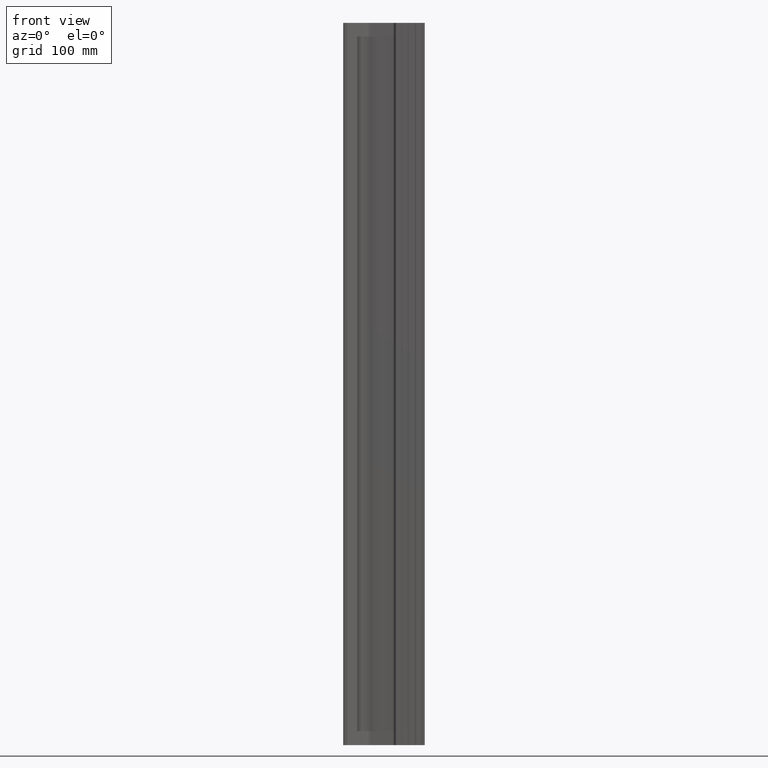
[diagram: clean part render]
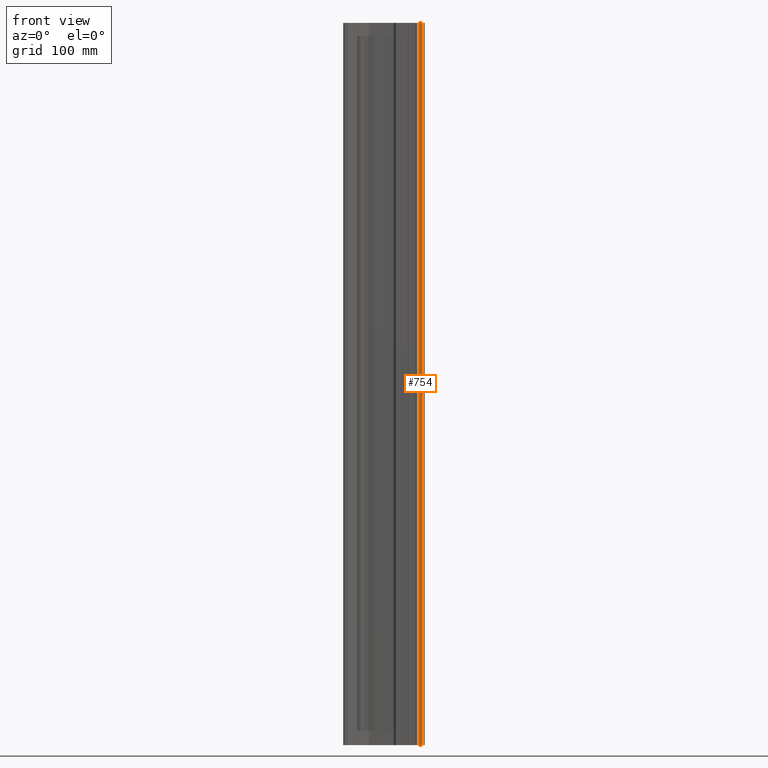
[diagram: same view with one face highlighted and labeled with its STEP entity id]
A machine part, front view. The second image highlights one B-rep face of the part: STEP entity #754.
In plain terms, the highlighted planar face has unit normal (-0, 1, 0).
Its self-contained STEP definition (entity closure, byte-faithful):
#140 = DIRECTION ( 'NONE',  ( -2.168404344971006900E-016, 1.000000000000000000, 0.0000000000000000000 ) ) ;
#222 = ORIENTED_EDGE ( 'NONE', *, *, #398, .F. ) ;
#225 = CARTESIAN_POINT ( 'NONE',  ( 105.0000000000000000, -5.500000000000000900, -500.0000000000000000 ) ) ;
#286 = VERTEX_POINT ( 'NONE', #225 ) ;
#332 = EDGE_CURVE ( 'NONE', #1481, #286, #2078, .T. ) ;
#346 = LINE ( 'NONE', #2572, #404 ) ;
#366 = EDGE_CURVE ( 'NONE', #286, #1687, #1402, .T. ) ;
#394 = EDGE_CURVE ( 'NONE', #1875, #1687, #856, .T. ) ;
#398 = EDGE_CURVE ( 'NONE', #1481, #1875, #346, .T. ) ;
#404 = VECTOR ( 'NONE', #1382, 1000.000000000000000 ) ;
#418 = DIRECTION ( 'NONE',  ( 1.000000000000000000, 2.168404344971006900E-016, -0.0000000000000000000 ) ) ;
#423 = CARTESIAN_POINT ( 'NONE',  ( 109.0000000000000000, -5.500000000000000000, -500.0000000000000000 ) ) ;
#517 = CARTESIAN_POINT ( 'NONE',  ( 109.0000000000000000, -5.500000000000000000, 500.0000000000000000 ) ) ;
#754 = ADVANCED_FACE ( 'NONE', ( #1180 ), #2357, .F. ) ;
#770 = DIRECTION ( 'NONE',  ( -0.0000000000000000000, -0.0000000000000000000, -1.000000000000000000 ) ) ;
#856 = LINE ( 'NONE', #2521, #2415 ) ;
#930 = EDGE_LOOP ( 'NONE', ( #1478, #1773, #222, #1654 ) ) ;
#1180 = FACE_OUTER_BOUND ( 'NONE', #930, .T. ) ;
#1293 = CARTESIAN_POINT ( 'NONE',  ( 105.0000000000000000, -5.500000000000000900, 500.0000000000000000 ) ) ;
#1349 = CARTESIAN_POINT ( 'NONE',  ( 109.0000000000000000, -5.500000000000000000, 500.0000000000000000 ) ) ;
#1382 = DIRECTION ( 'NONE',  ( 1.000000000000000000, 2.168404344971006900E-016, -0.0000000000000000000 ) ) ;
#1402 = LINE ( 'NONE', #423, #1960 ) ;
#1466 = CARTESIAN_POINT ( 'NONE',  ( 109.0000000000000000, -5.500000000000000000, -500.0000000000000000 ) ) ;
#1478 = ORIENTED_EDGE ( 'NONE', *, *, #366, .T. ) ;
#1481 = VERTEX_POINT ( 'NONE', #2407 ) ;
#1560 = DIRECTION ( 'NONE',  ( -1.000000000000000000, -2.168404344971006900E-016, 0.0000000000000000000 ) ) ;
#1654 = ORIENTED_EDGE ( 'NONE', *, *, #332, .T. ) ;
#1687 = VERTEX_POINT ( 'NONE', #1466 ) ;
#1773 = ORIENTED_EDGE ( 'NONE', *, *, #394, .F. ) ;
#1875 = VERTEX_POINT ( 'NONE', #517 ) ;
#1902 = DIRECTION ( 'NONE',  ( -0.0000000000000000000, -0.0000000000000000000, -1.000000000000000000 ) ) ;
#1960 = VECTOR ( 'NONE', #418, 1000.000000000000000 ) ;
#2044 = AXIS2_PLACEMENT_3D ( 'NONE', #1349, #140, #1560 ) ;
#2078 = LINE ( 'NONE', #1293, #2540 ) ;
#2357 = PLANE ( 'NONE',  #2044 ) ;
#2407 = CARTESIAN_POINT ( 'NONE',  ( 105.0000000000000000, -5.500000000000000900, 500.0000000000000000 ) ) ;
#2415 = VECTOR ( 'NONE', #770, 1000.000000000000000 ) ;
#2521 = CARTESIAN_POINT ( 'NONE',  ( 109.0000000000000000, -5.500000000000000000, 500.0000000000000000 ) ) ;
#2540 = VECTOR ( 'NONE', #1902, 1000.000000000000000 ) ;
#2572 = CARTESIAN_POINT ( 'NONE',  ( 109.0000000000000000, -5.500000000000000000, 500.0000000000000000 ) ) ;